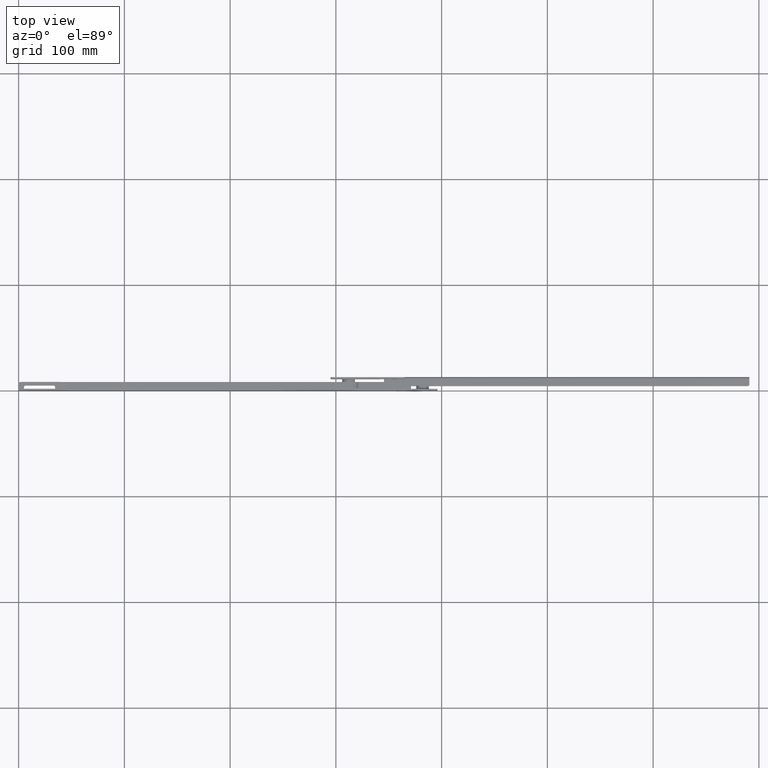
[diagram: clean part render]
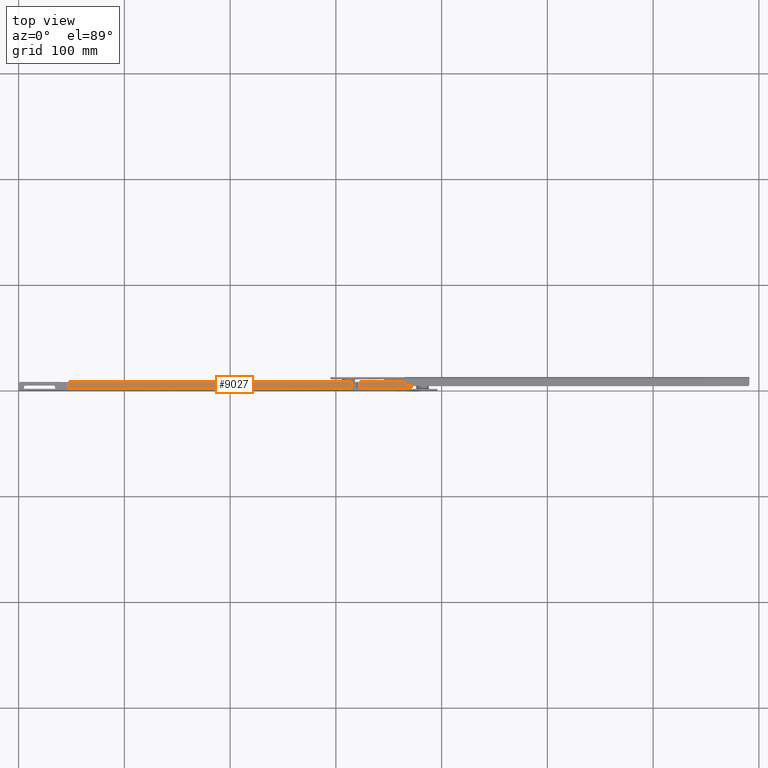
[diagram: same view with one face highlighted and labeled with its STEP entity id]
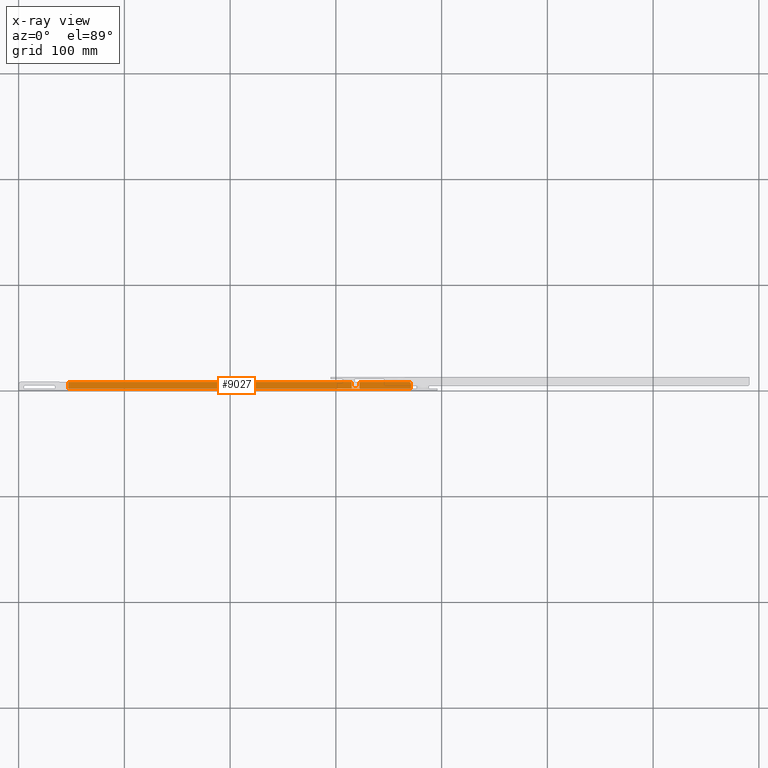
[diagram: x-ray of the same camera — body ghosted, the highlighted face saturated]
A machine part, top view. The second image highlights one B-rep face of the part: STEP entity #9027.
The next image is the same camera in x-ray: the body ghosted, the highlighted face saturated — about 0% of this face is hidden behind the body in this view.
In plain terms, the highlighted face is a freeform B-spline surface patch.
Its self-contained STEP definition (entity closure, byte-faithful):
#7260=CARTESIAN_POINT('',(371.0,6.0,24.0));
#7261=VERTEX_POINT('',#7260);
#7262=CARTESIAN_POINT('',(369.0,8.0,24.0));
#7263=VERTEX_POINT('',#7262);
#7264=CARTESIAN_POINT('',(371.0,6.0,24.0));
#7265=CARTESIAN_POINT('',(371.000000000000060,8.0,23.999999999999996));
#7266=CARTESIAN_POINT('',(369.0,8.0,24.0));
#7274=(BOUNDED_CURVE()B_SPLINE_CURVE(2,(#7264,#7265,#7266),.UNSPECIFIED.,.F.,.U.)CURVE()GEOMETRIC_REPRESENTATION_ITEM()QUASI_UNIFORM_CURVE()RATIONAL_B_SPLINE_CURVE((1.0,0.707106781186548,1.0))REPRESENTATION_ITEM(''));
#7275=EDGE_CURVE('',#7261,#7263,#7274,.T.);
#7321=CARTESIAN_POINT('',(315.056778559224030,8.0,24.0));
#7322=VERTEX_POINT('',#7321);
#7338=CARTESIAN_POINT('',(315.056778559224030,2.0,24.0));
#7339=VERTEX_POINT('',#7338);
#7340=CARTESIAN_POINT('',(315.056778559224030,2.0,24.0));
#7341=CARTESIAN_POINT('',(315.056778559224030,8.0,24.0));
#7342=QUASI_UNIFORM_CURVE('',1,(#7340,#7341),.UNSPECIFIED.,.F.,.U.);
#7343=EDGE_CURVE('',#7339,#7322,#7342,.T.);
#7384=CARTESIAN_POINT('',(322.507881440775520,8.0,24.0));
#7385=VERTEX_POINT('',#7384);
#7406=CARTESIAN_POINT('',(322.507881440775520,2.0,24.0));
#7407=VERTEX_POINT('',#7406);
#7421=CARTESIAN_POINT('',(322.507881440775520,8.0,24.0));
#7422=CARTESIAN_POINT('',(322.507881440775520,2.0,24.0));
#7423=QUASI_UNIFORM_CURVE('',1,(#7421,#7422),.UNSPECIFIED.,.F.,.U.);
#7424=EDGE_CURVE('',#7385,#7407,#7423,.T.);
#8320=CARTESIAN_POINT('',(371.0,1.500000000000000,24.0));
#8321=VERTEX_POINT('',#8320);
#8335=CARTESIAN_POINT('',(47.0,1.500000000000055,24.0));
#8336=VERTEX_POINT('',#8335);
#8337=CARTESIAN_POINT('',(47.0,1.500000000000055,24.0));
#8338=CARTESIAN_POINT('',(371.0,1.500000000000000,24.0));
#8339=QUASI_UNIFORM_CURVE('',1,(#8337,#8338),.UNSPECIFIED.,.F.,.U.);
#8340=EDGE_CURVE('',#8336,#8321,#8339,.T.);
#8855=CARTESIAN_POINT('',(47.0,8.0,24.0));
#8856=VERTEX_POINT('',#8855);
#8857=CARTESIAN_POINT('',(47.0,8.0,24.0));
#8858=CARTESIAN_POINT('',(47.0,1.500000000000055,24.0));
#8859=QUASI_UNIFORM_CURVE('',1,(#8857,#8858),.UNSPECIFIED.,.F.,.U.);
#8860=EDGE_CURVE('',#8856,#8336,#8859,.T.);
#8955=CARTESIAN_POINT('',(371.0,1.500000000000000,24.0));
#8956=CARTESIAN_POINT('',(371.0,6.0,24.0));
#8957=QUASI_UNIFORM_CURVE('',1,(#8955,#8956),.UNSPECIFIED.,.F.,.U.);
#8958=EDGE_CURVE('',#8321,#7261,#8957,.T.);
#8974=CARTESIAN_POINT('',(315.056778559224030,8.0,24.0));
#8975=CARTESIAN_POINT('',(47.0,8.0,24.0));
#8976=QUASI_UNIFORM_CURVE('',1,(#8974,#8975),.UNSPECIFIED.,.F.,.U.);
#8977=EDGE_CURVE('',#7322,#8856,#8976,.T.);
#8984=CARTESIAN_POINT('',(369.0,8.0,24.0));
#8985=CARTESIAN_POINT('',(322.507881440775520,8.0,24.0));
#8986=QUASI_UNIFORM_CURVE('',1,(#8984,#8985),.UNSPECIFIED.,.F.,.U.);
#8987=EDGE_CURVE('',#7263,#7385,#8986,.T.);
#9007=CARTESIAN_POINT('',(30.816200627974862,1.175325012598261,24.0));
#9008=CARTESIAN_POINT('',(387.183808062382410,1.175325012598261,24.0));
#9009=CARTESIAN_POINT('',(30.816200627974862,8.324675161745324,24.0));
#9010=CARTESIAN_POINT('',(387.183808062382410,8.324675161745324,24.0));
#9011=B_SPLINE_SURFACE_WITH_KNOTS('',1,1,((#9007,#9009),(#9008,#9010)),.UNSPECIFIED.,.F.,.F.,.U.,(2,2),(2,2),(0.0,356.367607434407600),(0.0,7.149350149147063),.UNSPECIFIED.);
#9012=ORIENTED_EDGE('',*,*,#8958,.T.);
#9013=ORIENTED_EDGE('',*,*,#7275,.T.);
#9014=ORIENTED_EDGE('',*,*,#8987,.T.);
#9015=ORIENTED_EDGE('',*,*,#7424,.T.);
#9016=CARTESIAN_POINT('',(315.056778559224030,2.0,24.0));
#9017=CARTESIAN_POINT('',(322.507881440775520,2.0,24.0));
#9018=QUASI_UNIFORM_CURVE('',1,(#9016,#9017),.UNSPECIFIED.,.F.,.U.);
#9019=EDGE_CURVE('',#7339,#7407,#9018,.T.);
#9020=ORIENTED_EDGE('',*,*,#9019,.F.);
#9021=ORIENTED_EDGE('',*,*,#7343,.T.);
#9022=ORIENTED_EDGE('',*,*,#8977,.T.);
#9023=ORIENTED_EDGE('',*,*,#8860,.T.);
#9024=ORIENTED_EDGE('',*,*,#8340,.T.);
#9025=EDGE_LOOP('',(#9012,#9013,#9014,#9015,#9020,#9021,#9022,#9023,#9024));
#9026=FACE_OUTER_BOUND('',#9025,.T.);
#9027=ADVANCED_FACE('',(#9026),#9011,.T.);